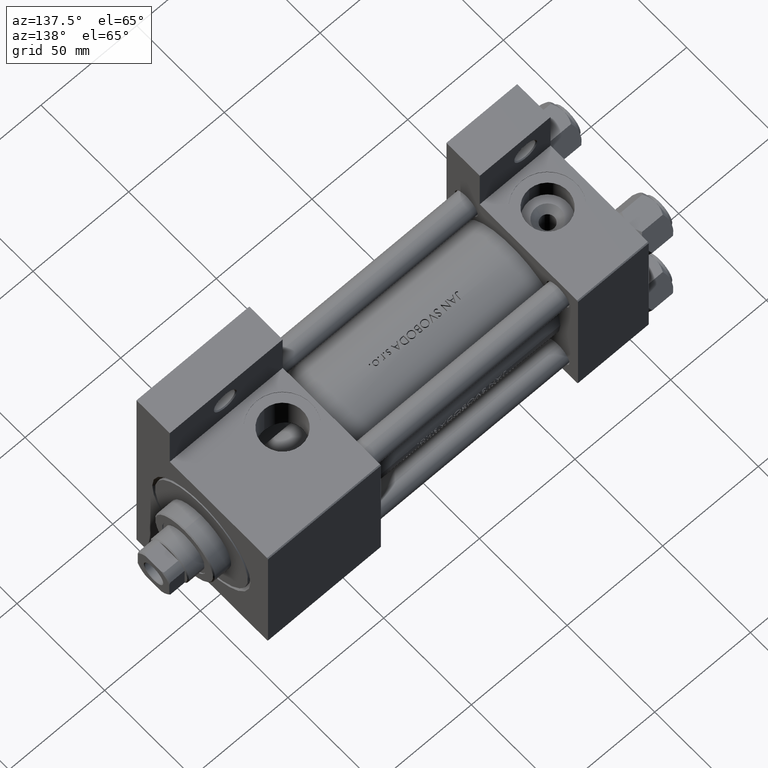
[diagram: clean part render]
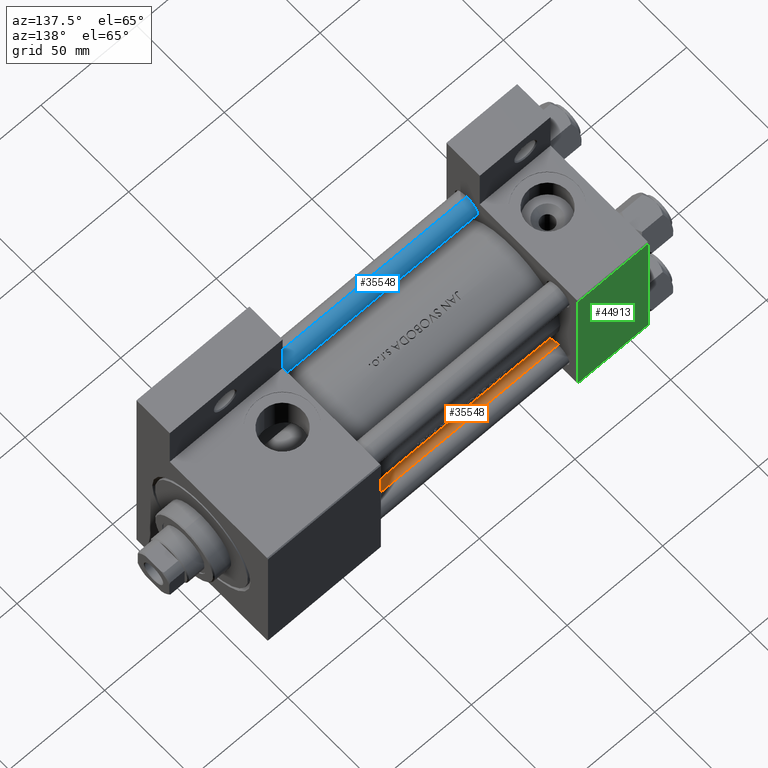
[diagram: same view with three faces highlighted in distinct colors, each labeled with its STEP entity id]
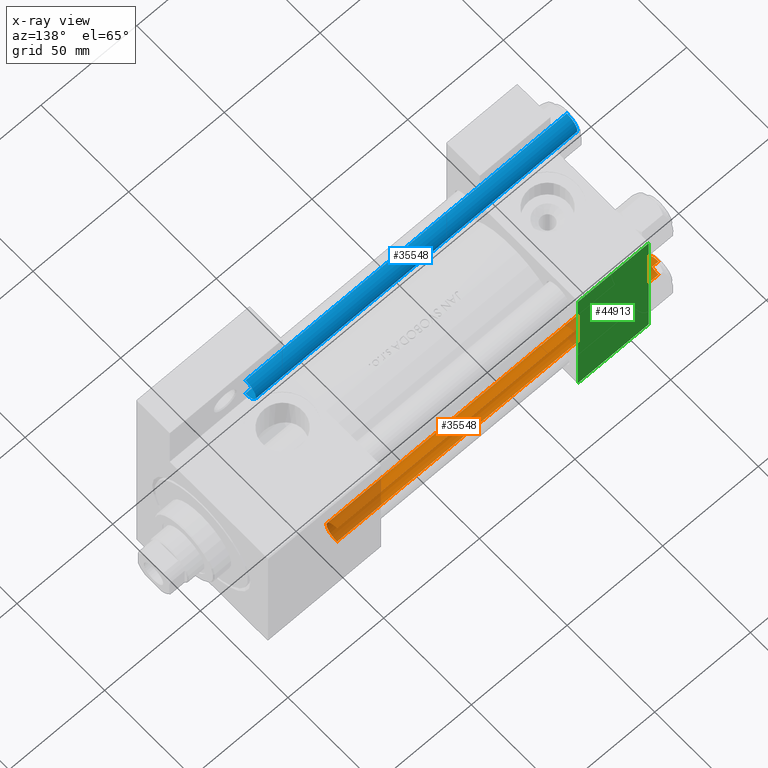
[diagram: x-ray of the same camera — body ghosted, the three highlighted faces saturated]
A machine part, auxiliary view with three faces highlighted in distinct colors.
The next image is the same camera in x-ray (body ghosted, the three faces saturated) — at least one of them is partly hidden behind the body in this view.
Their STEP definitions:

[orange] entity #35548 — the highlighted cylindrical surface (edge-blend (fillet) strip) has radius 6 mm, axis along (1, -0, -0).
#545 = CARTESIAN_POINT ( 'NONE',  ( 0.000000000000000000, 0.000000000000000000, 0.5000000000000004441 ) ) ;
#1226 = CIRCLE ( 'NONE', #41774, 6.000000000000000888 ) ;
#5168 = ORIENTED_EDGE ( 'NONE', *, *, #23927, .T. ) ;
#5833 = CARTESIAN_POINT ( 'NONE',  ( -6.000000000000000888, 0.000000000000000000, 0.5000000000000004441 ) ) ;
#5857 = VERTEX_POINT ( 'NONE', #26870 ) ;
#11323 = DIRECTION ( 'NONE',  ( -1.000000000000000000, 0.000000000000000000, 0.000000000000000000 ) ) ;
#12477 = DIRECTION ( 'NONE',  ( 1.000000000000000000, 0.000000000000000000, 0.000000000000000000 ) ) ;
#12581 = EDGE_CURVE ( 'NONE', #48485, #17998, #44489, .T. ) ;
#13135 = CIRCLE ( 'NONE', #30598, 6.000000000000000888 ) ;
#14384 = AXIS2_PLACEMENT_3D ( 'NONE', #38438, #30233, #11323 ) ;
#14850 = EDGE_CURVE ( 'NONE', #31603, #5857, #26370, .T. ) ;
#15062 = FACE_OUTER_BOUND ( 'NONE', #17472, .T. ) ;
#17472 = EDGE_LOOP ( 'NONE', ( #40249, #5168, #33390, #45092 ) ) ;
#17998 = VERTEX_POINT ( 'NONE', #5833 ) ;
#18186 = CARTESIAN_POINT ( 'NONE',  ( 6.000000000000000888, 7.347880794884120722E-16, 169.0000000000000000 ) ) ;
#18861 = DIRECTION ( 'NONE',  ( 0.000000000000000000, 0.000000000000000000, -1.000000000000000000 ) ) ;
#21671 = VECTOR ( 'NONE', #36266, 1000.000000000000000 ) ;
#21925 = DIRECTION ( 'NONE',  ( -0.000000000000000000, -0.000000000000000000, -1.000000000000000000 ) ) ;
#23689 = DIRECTION ( 'NONE',  ( -0.000000000000000000, -0.000000000000000000, 1.000000000000000000 ) ) ;
#23927 = EDGE_CURVE ( 'NONE', #31603, #48485, #1226, .T. ) ;
#25320 = CARTESIAN_POINT ( 'NONE',  ( -6.000000000000000888, 0.000000000000000000, 169.0000000000000000 ) ) ;
#25716 = VECTOR ( 'NONE', #21925, 1000.000000000000000 ) ;
#26370 = LINE ( 'NONE', #18186, #25716 ) ;
#26753 = CYLINDRICAL_SURFACE ( 'NONE', #14384, 6.000000000000000888 ) ;
#26870 = CARTESIAN_POINT ( 'NONE',  ( 6.000000000000000888, 7.347880794884120722E-16, 0.5000000000000004441 ) ) ;
#30037 = CARTESIAN_POINT ( 'NONE',  ( 0.000000000000000000, 0.000000000000000000, 168.4999999999999716 ) ) ;
#30233 = DIRECTION ( 'NONE',  ( -0.000000000000000000, -0.000000000000000000, -1.000000000000000000 ) ) ;
#30598 = AXIS2_PLACEMENT_3D ( 'NONE', #545, #23689, #12477 ) ;
#31603 = VERTEX_POINT ( 'NONE', #46338 ) ;
#33390 = ORIENTED_EDGE ( 'NONE', *, *, #12581, .T. ) ;
#35548 = ADVANCED_FACE ( 'NONE', ( #15062 ), #26753, .T. ) ;
#36266 = DIRECTION ( 'NONE',  ( -0.000000000000000000, -0.000000000000000000, -1.000000000000000000 ) ) ;
#37026 = DIRECTION ( 'NONE',  ( 1.000000000000000000, 0.000000000000000000, 0.000000000000000000 ) ) ;
#38438 = CARTESIAN_POINT ( 'NONE',  ( 0.000000000000000000, 0.000000000000000000, 169.0000000000000000 ) ) ;
#39753 = CARTESIAN_POINT ( 'NONE',  ( -6.000000000000000888, 0.000000000000000000, 168.4999999999999716 ) ) ;
#40249 = ORIENTED_EDGE ( 'NONE', *, *, #14850, .F. ) ;
#41774 = AXIS2_PLACEMENT_3D ( 'NONE', #30037, #18861, #37026 ) ;
#44489 = LINE ( 'NONE', #25320, #21671 ) ;
#45092 = ORIENTED_EDGE ( 'NONE', *, *, #49074, .T. ) ;
#46338 = CARTESIAN_POINT ( 'NONE',  ( 6.000000000000000888, 7.347880794884120722E-16, 168.4999999999999716 ) ) ;
#48485 = VERTEX_POINT ( 'NONE', #39753 ) ;
#49074 = EDGE_CURVE ( 'NONE', #17998, #5857, #13135, .T. ) ;

[blue] entity #35548 — the highlighted cylindrical surface (edge-blend (fillet) strip) has radius 6 mm, axis along (1, 0, 0).
#545 = CARTESIAN_POINT ( 'NONE',  ( 0.000000000000000000, 0.000000000000000000, 0.5000000000000004441 ) ) ;
#1226 = CIRCLE ( 'NONE', #41774, 6.000000000000000888 ) ;
#5168 = ORIENTED_EDGE ( 'NONE', *, *, #23927, .T. ) ;
#5833 = CARTESIAN_POINT ( 'NONE',  ( -6.000000000000000888, 0.000000000000000000, 0.5000000000000004441 ) ) ;
#5857 = VERTEX_POINT ( 'NONE', #26870 ) ;
#11323 = DIRECTION ( 'NONE',  ( -1.000000000000000000, 0.000000000000000000, 0.000000000000000000 ) ) ;
#12477 = DIRECTION ( 'NONE',  ( 1.000000000000000000, 0.000000000000000000, 0.000000000000000000 ) ) ;
#12581 = EDGE_CURVE ( 'NONE', #48485, #17998, #44489, .T. ) ;
#13135 = CIRCLE ( 'NONE', #30598, 6.000000000000000888 ) ;
#14384 = AXIS2_PLACEMENT_3D ( 'NONE', #38438, #30233, #11323 ) ;
#14850 = EDGE_CURVE ( 'NONE', #31603, #5857, #26370, .T. ) ;
#15062 = FACE_OUTER_BOUND ( 'NONE', #17472, .T. ) ;
#17472 = EDGE_LOOP ( 'NONE', ( #40249, #5168, #33390, #45092 ) ) ;
#17998 = VERTEX_POINT ( 'NONE', #5833 ) ;
#18186 = CARTESIAN_POINT ( 'NONE',  ( 6.000000000000000888, 7.347880794884120722E-16, 169.0000000000000000 ) ) ;
#18861 = DIRECTION ( 'NONE',  ( 0.000000000000000000, 0.000000000000000000, -1.000000000000000000 ) ) ;
#21671 = VECTOR ( 'NONE', #36266, 1000.000000000000000 ) ;
#21925 = DIRECTION ( 'NONE',  ( -0.000000000000000000, -0.000000000000000000, -1.000000000000000000 ) ) ;
#23689 = DIRECTION ( 'NONE',  ( -0.000000000000000000, -0.000000000000000000, 1.000000000000000000 ) ) ;
#23927 = EDGE_CURVE ( 'NONE', #31603, #48485, #1226, .T. ) ;
#25320 = CARTESIAN_POINT ( 'NONE',  ( -6.000000000000000888, 0.000000000000000000, 169.0000000000000000 ) ) ;
#25716 = VECTOR ( 'NONE', #21925, 1000.000000000000000 ) ;
#26370 = LINE ( 'NONE', #18186, #25716 ) ;
#26753 = CYLINDRICAL_SURFACE ( 'NONE', #14384, 6.000000000000000888 ) ;
#26870 = CARTESIAN_POINT ( 'NONE',  ( 6.000000000000000888, 7.347880794884120722E-16, 0.5000000000000004441 ) ) ;
#30037 = CARTESIAN_POINT ( 'NONE',  ( 0.000000000000000000, 0.000000000000000000, 168.4999999999999716 ) ) ;
#30233 = DIRECTION ( 'NONE',  ( -0.000000000000000000, -0.000000000000000000, -1.000000000000000000 ) ) ;
#30598 = AXIS2_PLACEMENT_3D ( 'NONE', #545, #23689, #12477 ) ;
#31603 = VERTEX_POINT ( 'NONE', #46338 ) ;
#33390 = ORIENTED_EDGE ( 'NONE', *, *, #12581, .T. ) ;
#35548 = ADVANCED_FACE ( 'NONE', ( #15062 ), #26753, .T. ) ;
#36266 = DIRECTION ( 'NONE',  ( -0.000000000000000000, -0.000000000000000000, -1.000000000000000000 ) ) ;
#37026 = DIRECTION ( 'NONE',  ( 1.000000000000000000, 0.000000000000000000, 0.000000000000000000 ) ) ;
#38438 = CARTESIAN_POINT ( 'NONE',  ( 0.000000000000000000, 0.000000000000000000, 169.0000000000000000 ) ) ;
#39753 = CARTESIAN_POINT ( 'NONE',  ( -6.000000000000000888, 0.000000000000000000, 168.4999999999999716 ) ) ;
#40249 = ORIENTED_EDGE ( 'NONE', *, *, #14850, .F. ) ;
#41774 = AXIS2_PLACEMENT_3D ( 'NONE', #30037, #18861, #37026 ) ;
#44489 = LINE ( 'NONE', #25320, #21671 ) ;
#45092 = ORIENTED_EDGE ( 'NONE', *, *, #49074, .T. ) ;
#46338 = CARTESIAN_POINT ( 'NONE',  ( 6.000000000000000888, 7.347880794884120722E-16, 168.4999999999999716 ) ) ;
#48485 = VERTEX_POINT ( 'NONE', #39753 ) ;
#49074 = EDGE_CURVE ( 'NONE', #17998, #5857, #13135, .T. ) ;

[green] entity #44913 — the highlighted planar face has unit normal (0, -1, -0).
#964 = CARTESIAN_POINT ( 'NONE',  ( 0.000000000000000000, -37.00000000000000711, 37.49999999999999289 ) ) ;
#2472 = EDGE_CURVE ( 'NONE', #10386, #16791, #9678, .T. ) ;
#3075 = FACE_OUTER_BOUND ( 'NONE', #12051, .T. ) ;
#5296 = LINE ( 'NONE', #36142, #39914 ) ;
#5510 = ORIENTED_EDGE ( 'NONE', *, *, #40064, .T. ) ;
#9578 = DIRECTION ( 'NONE',  ( 1.000000000000000000, 0.000000000000000000, 0.000000000000000000 ) ) ;
#9678 = LINE ( 'NONE', #47756, #46897 ) ;
#9822 = CARTESIAN_POINT ( 'NONE',  ( 37.00000000000000000, -37.00000000000000711, 37.49999999999999289 ) ) ;
#10386 = VERTEX_POINT ( 'NONE', #11705 ) ;
#11705 = CARTESIAN_POINT ( 'NONE',  ( 37.00000000000000000, 36.99999999999999289, 37.50000000000000000 ) ) ;
#11899 = EDGE_CURVE ( 'NONE', #10386, #23432, #5296, .T. ) ;
#12051 = EDGE_LOOP ( 'NONE', ( #15163, #5510, #27321, #45401 ) ) ;
#14050 = PLANE ( 'NONE',  #46358 ) ;
#14613 = EDGE_CURVE ( 'NONE', #16791, #22895, #26187, .T. ) ;
#15163 = ORIENTED_EDGE ( 'NONE', *, *, #14613, .T. ) ;
#16791 = VERTEX_POINT ( 'NONE', #45870 ) ;
#18033 = DIRECTION ( 'NONE',  ( 0.000000000000000000, 1.000000000000000000, 9.251858538542971581E-17 ) ) ;
#18273 = CARTESIAN_POINT ( 'NONE',  ( 37.00000000000000000, 37.49999999999999289, 37.50000000000000000 ) ) ;
#18499 = DIRECTION ( 'NONE',  ( 0.000000000000000000, -1.000000000000000000, -9.251858538542971581E-17 ) ) ;
#22895 = VERTEX_POINT ( 'NONE', #964 ) ;
#23432 = VERTEX_POINT ( 'NONE', #27228 ) ;
#24504 = LINE ( 'NONE', #9822, #28722 ) ;
#26187 = LINE ( 'NONE', #48624, #48789 ) ;
#27228 = CARTESIAN_POINT ( 'NONE',  ( 37.00000000000000000, -37.00000000000000711, 37.49999999999999289 ) ) ;
#27321 = ORIENTED_EDGE ( 'NONE', *, *, #11899, .F. ) ;
#28722 = VECTOR ( 'NONE', #9578, 1000.000000000000000 ) ;
#36142 = CARTESIAN_POINT ( 'NONE',  ( 37.00000000000000000, 37.49999999999999289, 37.50000000000000000 ) ) ;
#39622 = DIRECTION ( 'NONE',  ( 0.000000000000000000, -1.000000000000000000, -9.251858538542971581E-17 ) ) ;
#39914 = VECTOR ( 'NONE', #39622, 1000.000000000000000 ) ;
#40064 = EDGE_CURVE ( 'NONE', #22895, #23432, #24504, .T. ) ;
#44165 = DIRECTION ( 'NONE',  ( 0.000000000000000000, 9.251858538542971581E-17, -1.000000000000000000 ) ) ;
#44913 = ADVANCED_FACE ( 'NONE', ( #3075 ), #14050, .F. ) ;
#45401 = ORIENTED_EDGE ( 'NONE', *, *, #2472, .T. ) ;
#45870 = CARTESIAN_POINT ( 'NONE',  ( 0.000000000000000000, 36.99999999999999289, 37.50000000000000000 ) ) ;
#46358 = AXIS2_PLACEMENT_3D ( 'NONE', #18273, #44165, #18033 ) ;
#46897 = VECTOR ( 'NONE', #48010, 1000.000000000000000 ) ;
#47756 = CARTESIAN_POINT ( 'NONE',  ( 0.000000000000000000, 36.99999999999999289, 37.50000000000000000 ) ) ;
#48010 = DIRECTION ( 'NONE',  ( -1.000000000000000000, 0.000000000000000000, 0.000000000000000000 ) ) ;
#48624 = CARTESIAN_POINT ( 'NONE',  ( 0.000000000000000000, 37.49999999999999289, 37.50000000000000000 ) ) ;
#48789 = VECTOR ( 'NONE', #18499, 1000.000000000000000 ) ;